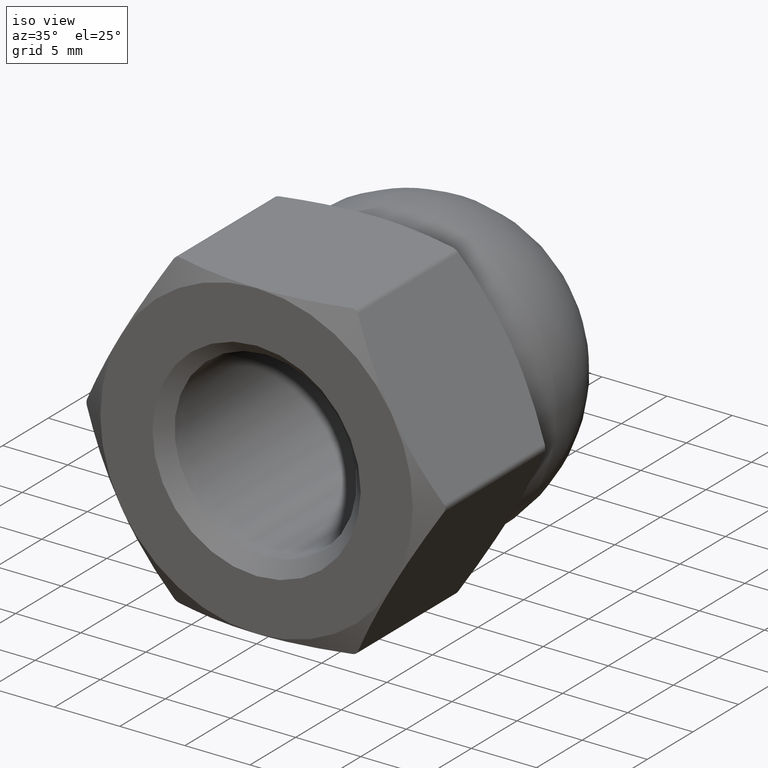
[diagram: clean part render]
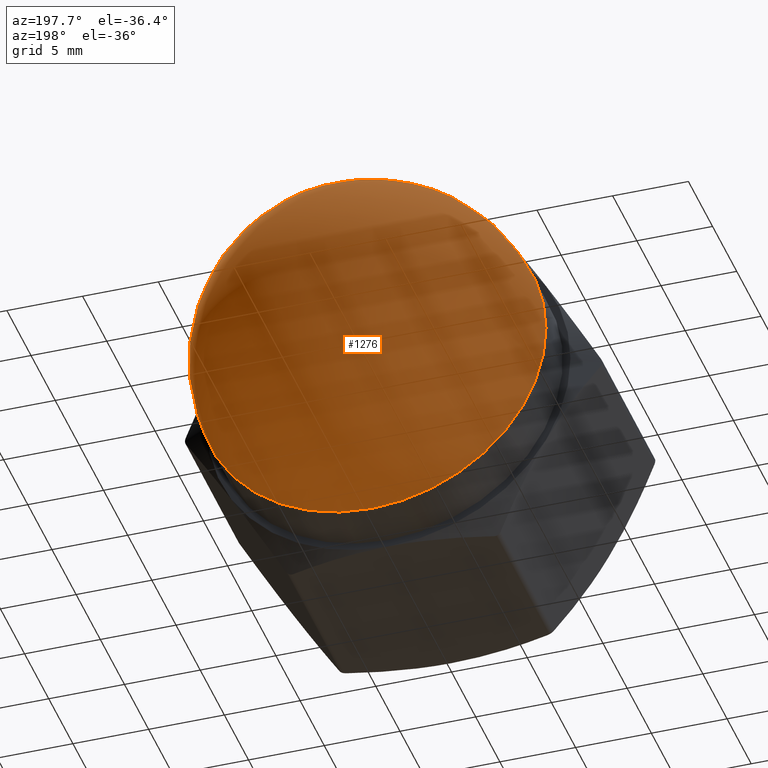
[diagram: tour spotlight — one face highlighted and labeled with its STEP entity id]
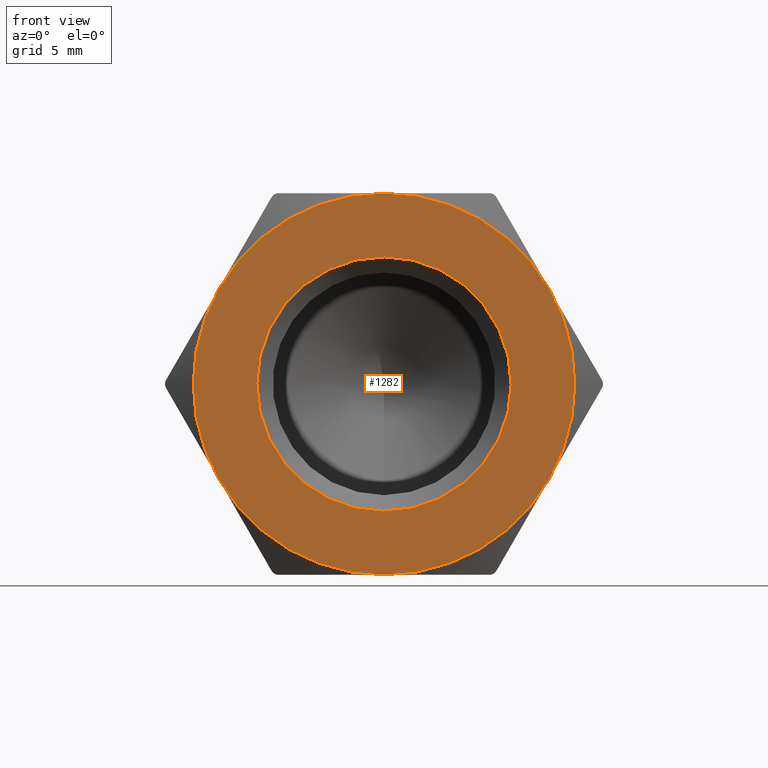
[diagram: tour spotlight — one face highlighted and labeled with its STEP entity id]
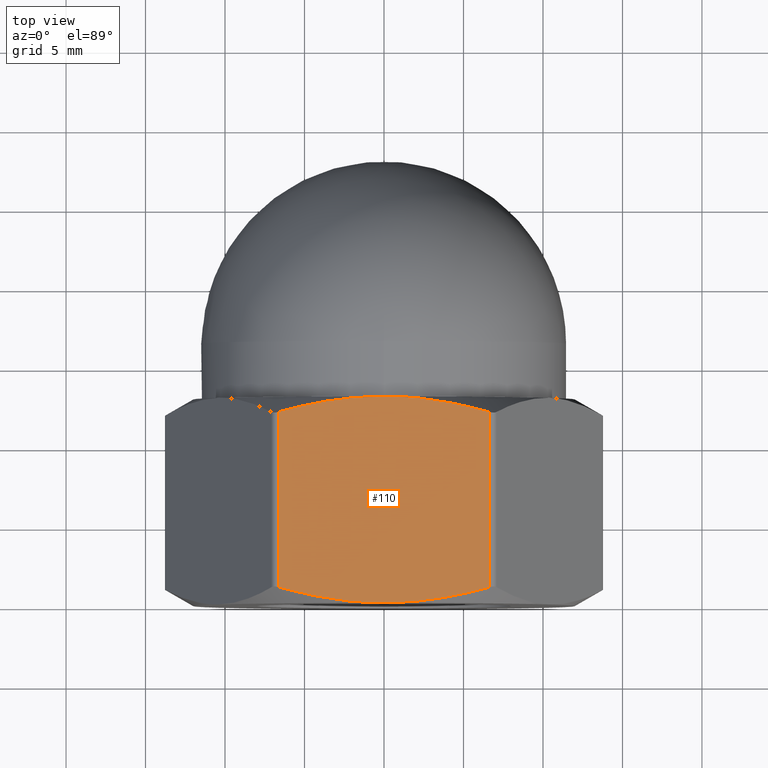
[diagram: tour spotlight — one face highlighted and labeled with its STEP entity id]
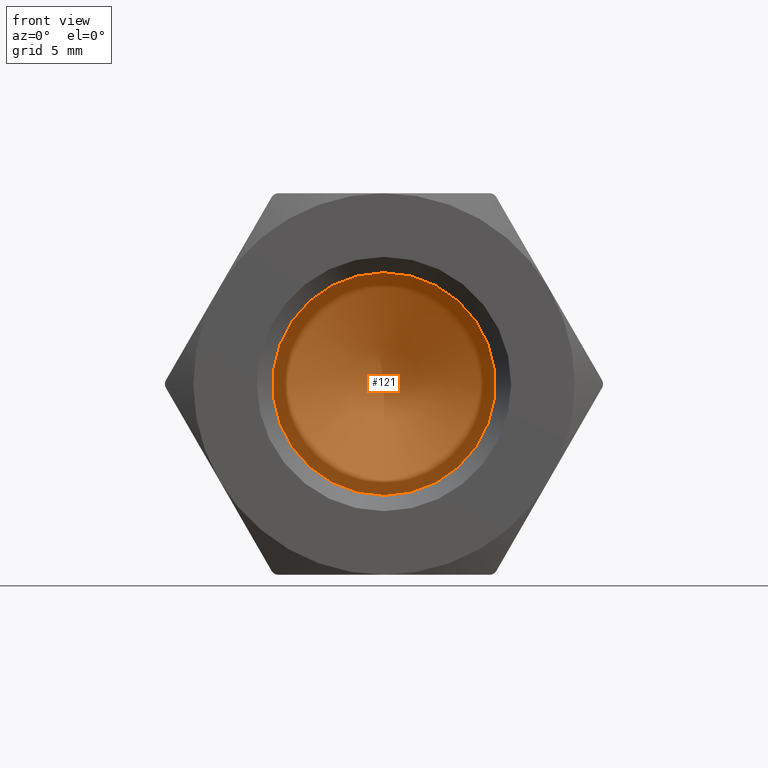
[diagram: tour spotlight — one face highlighted and labeled with its STEP entity id]
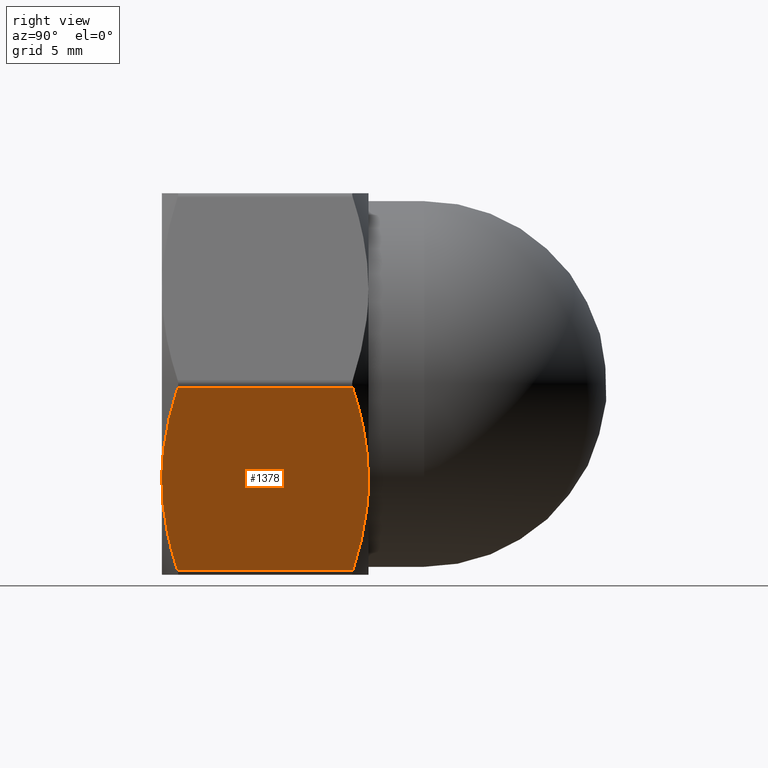
[diagram: tour spotlight — one face highlighted and labeled with its STEP entity id]
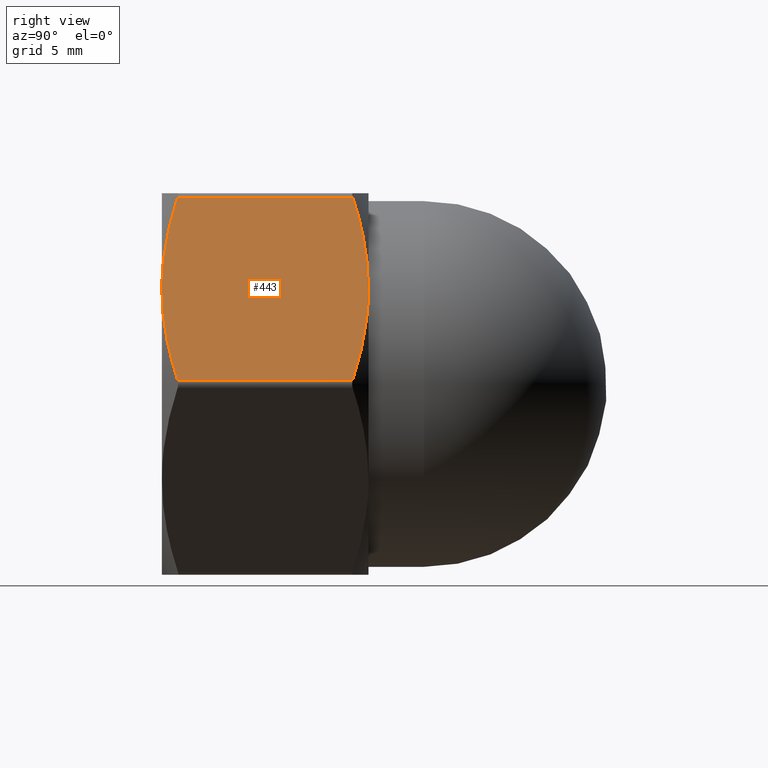
[diagram: tour spotlight — one face highlighted and labeled with its STEP entity id]
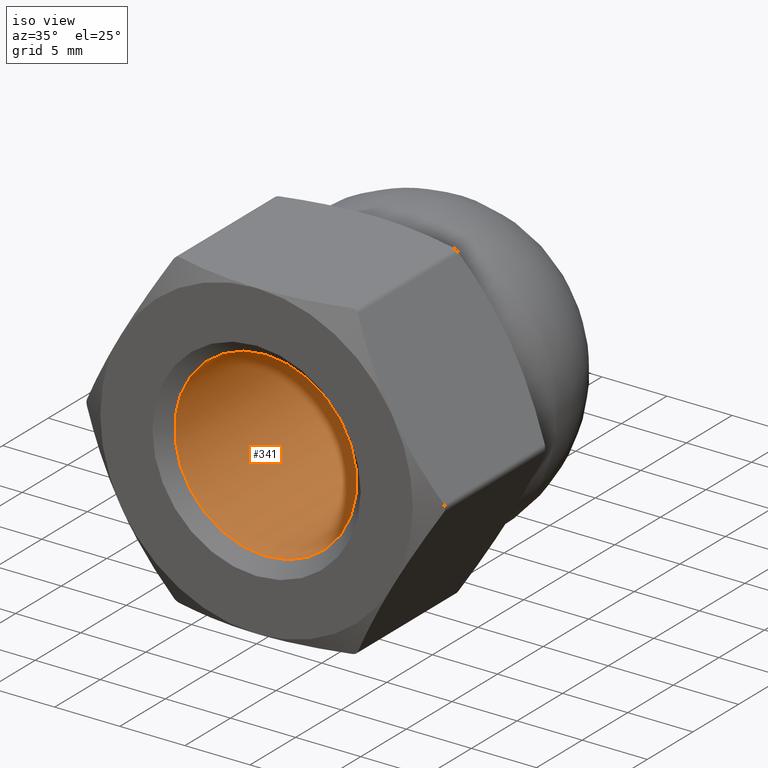
[diagram: tour spotlight — one face highlighted and labeled with its STEP entity id]
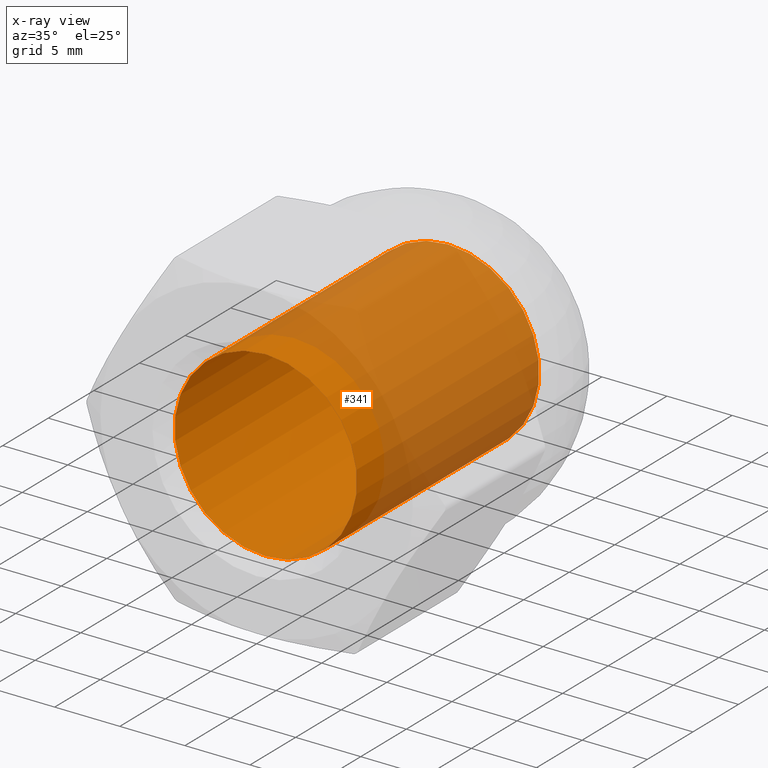
[diagram: x-ray of the same camera — body ghosted, this tour face saturated]
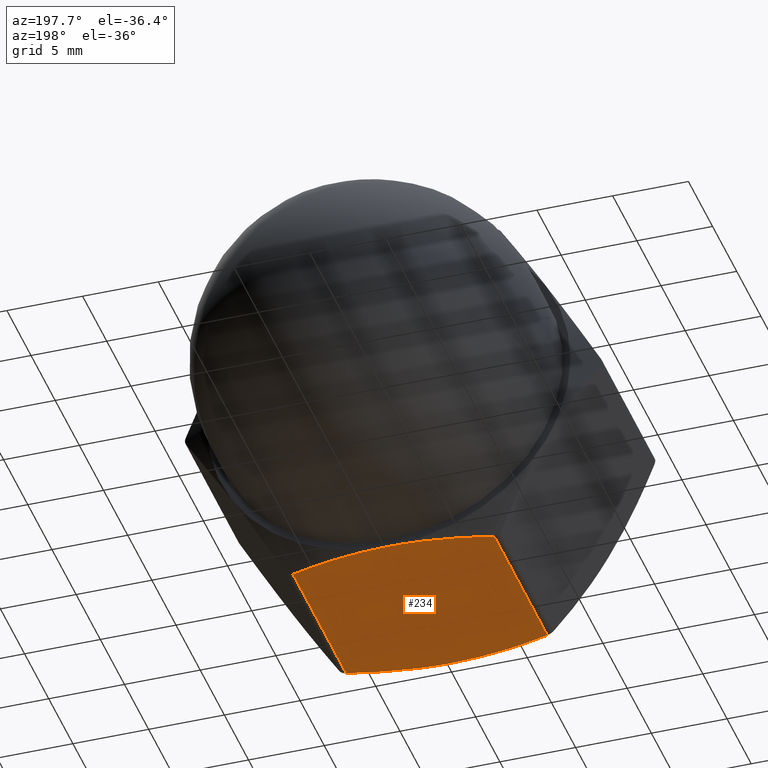
[diagram: tour spotlight — one face highlighted and labeled with its STEP entity id]
A machine part: a face-by-face anatomy tour. The part has 31 B-rep faces; the first image is the clean iso view, then the 8 largest visible faces are spotlighted one at a time (largest first), each with its STEP entity span.

Face 1 — auxiliary view, entity #1276. In plain terms, the highlighted spherical surface has radius 11.5 mm.
Definition (entity closure, byte-faithful):
#148 = CARTESIAN_POINT ( 'NONE',  ( 1.010333609296566500E-015, 16.50000000000000000, 0.0000000000000000000 ) ) ;
#223 = AXIS2_PLACEMENT_3D ( 'NONE', #148, #884, #654 ) ;
#296 = ORIENTED_EDGE ( 'NONE', *, *, #1033, .T. ) ;
#306 = DIRECTION ( 'NONE',  ( -9.850419906185231500E-017, 1.000000000000000000, -0.0000000000000000000 ) ) ;
#313 = DIRECTION ( 'NONE',  ( -1.000000000000000000, 0.0000000000000000000, 0.0000000000000000000 ) ) ;
#475 = CIRCLE ( 'NONE', #544, 11.50000000000000000 ) ;
#544 = AXIS2_PLACEMENT_3D ( 'NONE', #929, #306, #313 ) ;
#654 = DIRECTION ( 'NONE',  ( 1.000000000000000000, 0.0000000000000000000, 0.0000000000000000000 ) ) ;
#742 = SPHERICAL_SURFACE ( 'NONE', #223, 11.50000000000000000 ) ;
#884 = DIRECTION ( 'NONE',  ( 0.0000000000000000000, 0.0000000000000000000, -1.000000000000000000 ) ) ;
#929 = CARTESIAN_POINT ( 'NONE',  ( 1.010333609296566500E-015, 16.50000000000000000, 0.0000000000000000000 ) ) ;
#1024 = FACE_OUTER_BOUND ( 'NONE', #1258, .T. ) ;
#1033 = EDGE_CURVE ( 'NONE', #1270, #1270, #475, .T. ) ;
#1258 = EDGE_LOOP ( 'NONE', ( #296 ) ) ;
#1270 = VERTEX_POINT ( 'NONE', #1341 ) ;
#1276 = ADVANCED_FACE ( 'NONE', ( #1024 ), #742, .T. ) ;
#1341 = CARTESIAN_POINT ( 'NONE',  ( -11.49999999999999800, 16.50000000000000000, 0.0000000000000000000 ) ) ;

Face 2 — front view, entity #1282. In plain terms, the highlighted planar face has unit normal (0, 1, 0).
Definition (entity closure, byte-faithful):
#8 = CIRCLE ( 'NONE', #1261, 12.00000000000000200 ) ;
#11 = VERTEX_POINT ( 'NONE', #935 ) ;
#16 = EDGE_LOOP ( 'NONE', ( #221 ) ) ;
#42 = VERTEX_POINT ( 'NONE', #524 ) ;
#77 = CIRCLE ( 'NONE', #1328, 12.00000000000000200 ) ;
#78 = CIRCLE ( 'NONE', #233, 12.00000000000000200 ) ;
#99 = ORIENTED_EDGE ( 'NONE', *, *, #705, .T. ) ;
#103 = AXIS2_PLACEMENT_3D ( 'NONE', #170, #1001, #903 ) ;
#116 = CIRCLE ( 'NONE', #1048, 12.00000000000000200 ) ;
#170 = CARTESIAN_POINT ( 'NONE',  ( 0.0000000000000000000, 0.0000000000000000000, 0.0000000000000000000 ) ) ;
#221 = ORIENTED_EDGE ( 'NONE', *, *, #1086, .T. ) ;
#233 = AXIS2_PLACEMENT_3D ( 'NONE', #584, #1329, #1203 ) ;
#239 = ORIENTED_EDGE ( 'NONE', *, *, #1299, .F. ) ;
#269 = CARTESIAN_POINT ( 'NONE',  ( 0.0000000000000000000, 0.0000000000000000000, 0.0000000000000000000 ) ) ;
#270 = EDGE_CURVE ( 'NONE', #769, #358, #8, .T. ) ;
#280 = CARTESIAN_POINT ( 'NONE',  ( -10.39230484541326400, 0.0000000000000000000, -6.000000000000001800 ) ) ;
#298 = AXIS2_PLACEMENT_3D ( 'NONE', #488, #788, #1207 ) ;
#336 = DIRECTION ( 'NONE',  ( 0.0000000000000000000, 0.0000000000000000000, 1.000000000000000000 ) ) ;
#358 = VERTEX_POINT ( 'NONE', #280 ) ;
#379 = VERTEX_POINT ( 'NONE', #411 ) ;
#380 = CARTESIAN_POINT ( 'NONE',  ( 10.39230484541326400, 0.0000000000000000000, -6.000000000000004400 ) ) ;
#381 = ORIENTED_EDGE ( 'NONE', *, *, #619, .F. ) ;
#383 = DIRECTION ( 'NONE',  ( 0.0000000000000000000, 1.000000000000000000, 0.0000000000000000000 ) ) ;
#401 = AXIS2_PLACEMENT_3D ( 'NONE', #1186, #1174, #336 ) ;
#410 = VERTEX_POINT ( 'NONE', #1327 ) ;
#411 = CARTESIAN_POINT ( 'NONE',  ( 0.0000000000000000000, 0.0000000000000000000, 12.00000000000000000 ) ) ;
#481 = PLANE ( 'NONE',  #298 ) ;
#488 = CARTESIAN_POINT ( 'NONE',  ( 0.0000000000000000000, 0.0000000000000000000, 0.0000000000000000000 ) ) ;
#498 = ORIENTED_EDGE ( 'NONE', *, *, #898, .F. ) ;
#524 = CARTESIAN_POINT ( 'NONE',  ( 0.0000000000000000000, 0.0000000000000000000, 8.000000000000007100 ) ) ;
#541 = FACE_OUTER_BOUND ( 'NONE', #1324, .T. ) ;
#543 = ORIENTED_EDGE ( 'NONE', *, *, #270, .F. ) ;
#584 = CARTESIAN_POINT ( 'NONE',  ( 0.0000000000000000000, 0.0000000000000000000, 0.0000000000000000000 ) ) ;
#600 = DIRECTION ( 'NONE',  ( 0.0000000000000000000, 1.000000000000000000, 0.0000000000000000000 ) ) ;
#619 = EDGE_CURVE ( 'NONE', #358, #410, #892, .T. ) ;
#630 = VERTEX_POINT ( 'NONE', #380 ) ;
#637 = DIRECTION ( 'NONE',  ( 0.0000000000000000000, 0.0000000000000000000, 1.000000000000000000 ) ) ;
#705 = EDGE_CURVE ( 'NONE', #769, #630, #78, .T. ) ;
#713 = CARTESIAN_POINT ( 'NONE',  ( 0.0000000000000000000, 0.0000000000000000000, 0.0000000000000000000 ) ) ;
#717 = DIRECTION ( 'NONE',  ( 0.0000000000000000000, 1.000000000000000000, 0.0000000000000000000 ) ) ;
#760 = FACE_BOUND ( 'NONE', #16, .T. ) ;
#769 = VERTEX_POINT ( 'NONE', #890 ) ;
#788 = DIRECTION ( 'NONE',  ( 0.0000000000000000000, 1.000000000000000000, 0.0000000000000000000 ) ) ;
#890 = CARTESIAN_POINT ( 'NONE',  ( -1.502314598737160000E-015, 0.0000000000000000000, -12.00000000000000200 ) ) ;
#892 = CIRCLE ( 'NONE', #103, 12.00000000000000200 ) ;
#897 = DIRECTION ( 'NONE',  ( 0.0000000000000000000, 0.0000000000000000000, 1.000000000000000000 ) ) ;
#898 = EDGE_CURVE ( 'NONE', #410, #379, #116, .T. ) ;
#903 = DIRECTION ( 'NONE',  ( 0.0000000000000000000, 0.0000000000000000000, 1.000000000000000000 ) ) ;
#915 = CARTESIAN_POINT ( 'NONE',  ( 0.0000000000000000000, 0.0000000000000000000, 0.0000000000000000000 ) ) ;
#917 = CARTESIAN_POINT ( 'NONE',  ( 0.0000000000000000000, 0.0000000000000000000, 0.0000000000000000000 ) ) ;
#935 = CARTESIAN_POINT ( 'NONE',  ( 10.39230484541326800, 0.0000000000000000000, 5.999999999999999100 ) ) ;
#1001 = DIRECTION ( 'NONE',  ( 0.0000000000000000000, 1.000000000000000000, 0.0000000000000000000 ) ) ;
#1048 = AXIS2_PLACEMENT_3D ( 'NONE', #917, #717, #637 ) ;
#1056 = CIRCLE ( 'NONE', #1230, 12.00000000000000200 ) ;
#1086 = EDGE_CURVE ( 'NONE', #42, #42, #1202, .T. ) ;
#1128 = DIRECTION ( 'NONE',  ( 0.0000000000000000000, 0.0000000000000000000, 1.000000000000000000 ) ) ;
#1174 = DIRECTION ( 'NONE',  ( 0.0000000000000000000, 1.000000000000000000, 0.0000000000000000000 ) ) ;
#1186 = CARTESIAN_POINT ( 'NONE',  ( 0.0000000000000000000, 0.0000000000000000000, 0.0000000000000000000 ) ) ;
#1202 = CIRCLE ( 'NONE', #401, 8.000000000000007100 ) ;
#1203 = DIRECTION ( 'NONE',  ( 0.0000000000000000000, 0.0000000000000000000, -1.000000000000000000 ) ) ;
#1207 = DIRECTION ( 'NONE',  ( 0.0000000000000000000, -0.0000000000000000000, 1.000000000000000000 ) ) ;
#1230 = AXIS2_PLACEMENT_3D ( 'NONE', #269, #383, #897 ) ;
#1239 = DIRECTION ( 'NONE',  ( 0.0000000000000000000, 1.000000000000000000, 0.0000000000000000000 ) ) ;
#1261 = AXIS2_PLACEMENT_3D ( 'NONE', #713, #600, #1330 ) ;
#1282 = ADVANCED_FACE ( 'NONE', ( #760, #541 ), #481, .F. ) ;
#1299 = EDGE_CURVE ( 'NONE', #379, #11, #1056, .T. ) ;
#1307 = ORIENTED_EDGE ( 'NONE', *, *, #1343, .F. ) ;
#1324 = EDGE_LOOP ( 'NONE', ( #239, #498, #381, #543, #99, #1307 ) ) ;
#1327 = CARTESIAN_POINT ( 'NONE',  ( -10.39230484541326600, 0.0000000000000000000, 6.000000000000002700 ) ) ;
#1328 = AXIS2_PLACEMENT_3D ( 'NONE', #915, #1239, #1128 ) ;
#1329 = DIRECTION ( 'NONE',  ( 0.0000000000000000000, -1.000000000000000000, 0.0000000000000000000 ) ) ;
#1330 = DIRECTION ( 'NONE',  ( 0.0000000000000000000, 0.0000000000000000000, 1.000000000000000000 ) ) ;
#1343 = EDGE_CURVE ( 'NONE', #11, #630, #77, .T. ) ;

Face 3 — top view, entity #110. In plain terms, the highlighted planar face has unit normal (0, 0, -1).
Definition (entity closure, byte-faithful):
#26 = CARTESIAN_POINT ( 'NONE',  ( 5.564852187614547100, 0.6893936322554054000, 12.00000000000000000 ) ) ;
#35 = CARTESIAN_POINT ( 'NONE',  ( -6.928203230275506100, 13.00000000000000000, 12.00000000000000000 ) ) ;
#58 = CARTESIAN_POINT ( 'NONE',  ( 2.250940326994608200, 12.88654657712218700, 12.00000000000000200 ) ) ;
#64 = CARTESIAN_POINT ( 'NONE',  ( 6.639528095680693900, 12.01022088346238800, 12.00000000000000000 ) ) ;
#69 = CARTESIAN_POINT ( 'NONE',  ( 4.476170215682654600, 12.55945454350330700, 11.99999999999999800 ) ) ;
#79 = CARTESIAN_POINT ( 'NONE',  ( -1.120843460520681200, 13.00000000000000000, 12.00000000000000200 ) ) ;
#81 = VERTEX_POINT ( 'NONE', #730 ) ;
#97 = VERTEX_POINT ( 'NONE', #669 ) ;
#100 = B_SPLINE_CURVE_WITH_KNOTS ( 'NONE', 3,
 ( #552, #109, #1064, #1275, #453, #229 ),
 .UNSPECIFIED., .F., .F.,
 ( 4, 2, 4 ),
 ( 0.01207366422126375300, 0.01542013120109691000, 0.01876659818093006500 ),
 .UNSPECIFIED. ) ;
#109 = CARTESIAN_POINT ( 'NONE',  ( -1.120843460520680700, -1.067261513540418000E-015, 11.99999999999999800 ) ) ;
#110 = ADVANCED_FACE ( 'NONE', ( #442 ), #665, .F. ) ;
#140 = ORIENTED_EDGE ( 'NONE', *, *, #491, .F. ) ;
#146 = DIRECTION ( 'NONE',  ( 0.0000000000000000000, 0.0000000000000000000, -1.000000000000000000 ) ) ;
#190 = CARTESIAN_POINT ( 'NONE',  ( -4.450555589881894000, 12.56459061380292600, 12.00000000000000200 ) ) ;
#229 = CARTESIAN_POINT ( 'NONE',  ( -6.639528095680755200, 0.9897791165375797700, 12.00000000000000000 ) ) ;
#250 = CARTESIAN_POINT ( 'NONE',  ( 2.812232842606248200, 0.1810271902809791900, 12.00000000000000000 ) ) ;
#291 = CARTESIAN_POINT ( 'NONE',  ( 0.0000000000000000000, 13.00000000000000000, 12.00000000000000000 ) ) ;
#300 = CARTESIAN_POINT ( 'NONE',  ( 1.122912357192196800, 12.97720845569013000, 12.00000000000000200 ) ) ;
#317 = LINE ( 'NONE', #1116, #1135 ) ;
#318 = CARTESIAN_POINT ( 'NONE',  ( -6.639528095680758700, 12.01022088346242000, 12.00000000000000000 ) ) ;
#319 = EDGE_LOOP ( 'NONE', ( #1353, #849, #1015, #140, #616, #963 ) ) ;
#367 = CARTESIAN_POINT ( 'NONE',  ( 4.476170215682656400, 0.4405454564966958000, 12.00000000000000000 ) ) ;
#379 = VERTEX_POINT ( 'NONE', #411 ) ;
#411 = CARTESIAN_POINT ( 'NONE',  ( 0.0000000000000000000, 0.0000000000000000000, 12.00000000000000000 ) ) ;
#414 = B_SPLINE_CURVE_WITH_KNOTS ( 'NONE', 3,
 ( #611, #1227, #190, #701, #79, #291 ),
 .UNSPECIFIED., .F., .F.,
 ( 4, 2, 4 ),
 ( 0.01265961203048488300, 0.01601465630321334500, 0.01936970057594181200 ),
 .UNSPECIFIED. ) ;
#442 = FACE_OUTER_BOUND ( 'NONE', #319, .T. ) ;
#453 = CARTESIAN_POINT ( 'NONE',  ( -5.557285300470621100, 0.6872785917653089200, 12.00000000000000200 ) ) ;
#491 = EDGE_CURVE ( 'NONE', #81, #379, #1050, .T. ) ;
#515 = CARTESIAN_POINT ( 'NONE',  ( 2.812232842606247700, 12.81897280971902100, 12.00000000000000000 ) ) ;
#533 = DIRECTION ( 'NONE',  ( 0.0000000000000000000, -1.000000000000000000, 0.0000000000000000000 ) ) ;
#552 = CARTESIAN_POINT ( 'NONE',  ( 0.0000000000000000000, 0.0000000000000000000, 12.00000000000000000 ) ) ;
#572 = CARTESIAN_POINT ( 'NONE',  ( 0.5605972413833053600, -1.143494478793305500E-015, 12.00000000000000200 ) ) ;
#595 = CARTESIAN_POINT ( 'NONE',  ( 0.0000000000000000000, 13.00000000000000000, 12.00000000000000000 ) ) ;
#598 = EDGE_CURVE ( 'NONE', #81, #97, #317, .T. ) ;
#611 = CARTESIAN_POINT ( 'NONE',  ( -6.639528095680758700, 12.01022088346242000, 12.00000000000000000 ) ) ;
#616 = ORIENTED_EDGE ( 'NONE', *, *, #598, .T. ) ;
#643 = B_SPLINE_CURVE_WITH_KNOTS ( 'NONE', 3,
 ( #1338, #1125, #300, #58, #515, #69, #711, #64 ),
 .UNSPECIFIED., .F., .F.,
 ( 4, 2, 2, 4 ),
 ( 0.01936970057594181200, 0.02104774807343687600, 0.02272579557093194100, 0.02608189056592207000 ),
 .UNSPECIFIED. ) ;
#656 = CARTESIAN_POINT ( 'NONE',  ( 1.122912357192196800, 0.02279154430987211100, 12.00000000000000200 ) ) ;
#665 = PLANE ( 'NONE',  #1103 ) ;
#669 = CARTESIAN_POINT ( 'NONE',  ( 6.639528095680693900, 12.01022088346238800, 12.00000000000000000 ) ) ;
#683 = DIRECTION ( 'NONE',  ( -1.000000000000000000, 0.0000000000000000000, -0.0000000000000000000 ) ) ;
#698 = DIRECTION ( 'NONE',  ( -0.0000000000000000000, 1.000000000000000000, -0.0000000000000000000 ) ) ;
#701 = CARTESIAN_POINT ( 'NONE',  ( -2.234743191283541400, 12.90787549887573800, 12.00000000000000200 ) ) ;
#711 = CARTESIAN_POINT ( 'NONE',  ( 5.564852187614546300, 12.31060636774459400, 12.00000000000000200 ) ) ;
#724 = VERTEX_POINT ( 'NONE', #804 ) ;
#730 = CARTESIAN_POINT ( 'NONE',  ( 6.639528095680694800, 0.9897791165376106400, 12.00000000000000000 ) ) ;
#747 = VERTEX_POINT ( 'NONE', #595 ) ;
#765 = CARTESIAN_POINT ( 'NONE',  ( 2.250940326994609100, 0.1134534228778152400, 12.00000000000000200 ) ) ;
#770 = CARTESIAN_POINT ( 'NONE',  ( 6.639528095680694800, 0.9897791165376106400, 12.00000000000000000 ) ) ;
#804 = CARTESIAN_POINT ( 'NONE',  ( -6.639528095680755200, 0.9897791165375797700, 12.00000000000000000 ) ) ;
#830 = EDGE_CURVE ( 'NONE', #747, #97, #643, .T. ) ;
#849 = ORIENTED_EDGE ( 'NONE', *, *, #1061, .T. ) ;
#867 = EDGE_CURVE ( 'NONE', #938, #747, #414, .T. ) ;
#888 = VECTOR ( 'NONE', #533, 1000.000000000000000 ) ;
#938 = VERTEX_POINT ( 'NONE', #318 ) ;
#963 = ORIENTED_EDGE ( 'NONE', *, *, #830, .F. ) ;
#978 = CARTESIAN_POINT ( 'NONE',  ( 0.0000000000000000000, 0.0000000000000000000, 12.00000000000000000 ) ) ;
#1015 = ORIENTED_EDGE ( 'NONE', *, *, #1112, .F. ) ;
#1050 = B_SPLINE_CURVE_WITH_KNOTS ( 'NONE', 3,
 ( #770, #26, #367, #250, #765, #656, #572, #978 ),
 .UNSPECIFIED., .F., .F.,
 ( 4, 2, 2, 4 ),
 ( 0.005378634189493579000, 0.008726149205378666200, 0.01039990671332121000, 0.01207366422126375300 ),
 .UNSPECIFIED. ) ;
#1061 = EDGE_CURVE ( 'NONE', #938, #724, #1090, .T. ) ;
#1064 = CARTESIAN_POINT ( 'NONE',  ( -2.234743191283539600, 0.09212450112426455500, 12.00000000000000200 ) ) ;
#1090 = LINE ( 'NONE', #1149, #888 ) ;
#1103 = AXIS2_PLACEMENT_3D ( 'NONE', #35, #146, #683 ) ;
#1112 = EDGE_CURVE ( 'NONE', #379, #724, #100, .T. ) ;
#1116 = CARTESIAN_POINT ( 'NONE',  ( 6.639528095680694800, 13.00000000000000000, 12.00000000000000000 ) ) ;
#1125 = CARTESIAN_POINT ( 'NONE',  ( 0.5605972413833051300, 13.00000000000000200, 11.99999999999999800 ) ) ;
#1135 = VECTOR ( 'NONE', #698, 1000.000000000000000 ) ;
#1149 = CARTESIAN_POINT ( 'NONE',  ( -6.639528095680693900, 13.00000000000000000, 12.00000000000000000 ) ) ;
#1227 = CARTESIAN_POINT ( 'NONE',  ( -5.557285300470622900, 12.31272140823469000, 11.99999999999999800 ) ) ;
#1275 = CARTESIAN_POINT ( 'NONE',  ( -4.450555589881888700, 0.4354093861970753100, 12.00000000000000200 ) ) ;
#1338 = CARTESIAN_POINT ( 'NONE',  ( 0.0000000000000000000, 13.00000000000000000, 12.00000000000000000 ) ) ;
#1353 = ORIENTED_EDGE ( 'NONE', *, *, #867, .F. ) ;

Face 4 — front view, entity #121. In plain terms, the highlighted conical surface has half-angle 59 deg.
Definition (entity closure, byte-faithful):
#121 = ADVANCED_FACE ( 'NONE', ( #1204 ), #959, .F. ) ;
#175 = CARTESIAN_POINT ( 'NONE',  ( 0.0000000000000000000, 21.00000000000000000, 0.0000000000000000000 ) ) ;
#275 = DIRECTION ( 'NONE',  ( 0.0000000000000000000, 0.0000000000000000000, -1.000000000000000000 ) ) ;
#302 = CIRCLE ( 'NONE', #649, 6.999999999999995600 ) ;
#649 = AXIS2_PLACEMENT_3D ( 'NONE', #175, #820, #909 ) ;
#712 = ORIENTED_EDGE ( 'NONE', *, *, #850, .T. ) ;
#721 = AXIS2_PLACEMENT_3D ( 'NONE', #1105, #988, #275 ) ;
#820 = DIRECTION ( 'NONE',  ( -0.0000000000000000000, -1.000000000000000000, -0.0000000000000000000 ) ) ;
#829 = CARTESIAN_POINT ( 'NONE',  ( 0.0000000000000000000, 21.00000000000000000, -6.999999999999995600 ) ) ;
#850 = EDGE_CURVE ( 'NONE', #993, #993, #302, .T. ) ;
#909 = DIRECTION ( 'NONE',  ( 0.0000000000000000000, 0.0000000000000000000, -1.000000000000000000 ) ) ;
#959 = CONICAL_SURFACE ( 'NONE', #721, 6.999999999999995600, 1.029744258676653400 ) ;
#988 = DIRECTION ( 'NONE',  ( -0.0000000000000000000, -1.000000000000000000, -0.0000000000000000000 ) ) ;
#993 = VERTEX_POINT ( 'NONE', #829 ) ;
#1105 = CARTESIAN_POINT ( 'NONE',  ( 0.0000000000000000000, 21.00000000000000000, 0.0000000000000000000 ) ) ;
#1123 = EDGE_LOOP ( 'NONE', ( #712 ) ) ;
#1204 = FACE_OUTER_BOUND ( 'NONE', #1123, .T. ) ;

Face 5 — right view, entity #1378. In plain terms, the highlighted planar face has unit normal (-0.866, 0, 0.5).
Definition (entity closure, byte-faithful):
#30 = ORIENTED_EDGE ( 'NONE', *, *, #657, .T. ) ;
#38 = CARTESIAN_POINT ( 'NONE',  ( 10.39230484541326400, 13.00000000000000000, -6.000000000000004400 ) ) ;
#43 = VECTOR ( 'NONE', #899, 1000.000000000000000 ) ;
#48 = CARTESIAN_POINT ( 'NONE',  ( 10.95744704231412900, 13.00000000000000900, -5.021145001466601700 ) ) ;
#56 = CARTESIAN_POINT ( 'NONE',  ( 8.990347189129828100, 12.82002802009278000, -8.428261890743083700 ) ) ;
#60 = CARTESIAN_POINT ( 'NONE',  ( 13.71206889325361000, 13.00000000000000000, -0.2500000000000005000 ) ) ;
#83 = CARTESIAN_POINT ( 'NONE',  ( 7.615867869546742800, 0.6860455640991240900, -10.80892990621369200 ) ) ;
#88 = CARTESIAN_POINT ( 'NONE',  ( 10.39230484541326400, 0.0000000000000000000, -6.000000000000004400 ) ) ;
#92 = CARTESIAN_POINT ( 'NONE',  ( 10.95658457648177900, 0.02321187332249741200, -5.022638836108027000 ) ) ;
#115 = EDGE_CURVE ( 'NONE', #750, #911, #370, .T. ) ;
#130 = CARTESIAN_POINT ( 'NONE',  ( 7.072540797572896700, 0.9897791165376161900, -11.75000000000002100 ) ) ;
#162 = CARTESIAN_POINT ( 'NONE',  ( 10.11082040635886900, 13.00000000000001100, -6.487545349982230600 ) ) ;
#163 = CARTESIAN_POINT ( 'NONE',  ( 7.072540797572910000, 12.01022088346239000, -11.74999999999999800 ) ) ;
#171 = EDGE_LOOP ( 'NONE', ( #1254, #30, #363, #1096, #913, #1039 ) ) ;
#180 = CARTESIAN_POINT ( 'NONE',  ( 8.161051184807723400, 12.56206301313893200, -9.864644704742834900 ) ) ;
#189 = EDGE_CURVE ( 'NONE', #911, #617, #774, .T. ) ;
#194 = CARTESIAN_POINT ( 'NONE',  ( 7.072540797572896700, 0.9897791165376161900, -11.75000000000002100 ) ) ;
#214 = CARTESIAN_POINT ( 'NONE',  ( 13.17005630627445700, 0.6867803944023982400, -1.188793338989742300 ) ) ;
#262 = CARTESIAN_POINT ( 'NONE',  ( 11.51586903937508000, 12.90643417457839200, -4.053929730492941800 ) ) ;
#272 = B_SPLINE_CURVE_WITH_KNOTS ( 'NONE', 3,
 ( #194, #83, #1140, #927, #299, #513 ),
 .UNSPECIFIED., .F., .F.,
 ( 4, 2, 4 ),
 ( 0.0002976420579480877700, 0.003654043546377617200, 0.007010445034807147300 ),
 .UNSPECIFIED. ) ;
#289 = EDGE_CURVE ( 'NONE', #750, #1065, #461, .T. ) ;
#297 = CARTESIAN_POINT ( 'NONE',  ( 7.072540797572910000, 12.01022088346239000, -11.74999999999999800 ) ) ;
#299 = CARTESIAN_POINT ( 'NONE',  ( 9.827162648512390000, -1.008646833590420800E-014, -6.978854998533403600 ) ) ;
#301 = FACE_OUTER_BOUND ( 'NONE', #171, .T. ) ;
#303 = DIRECTION ( 'NONE',  ( 0.5000000000000002200, 0.0000000000000000000, 0.8660254037844384900 ) ) ;
#325 = CARTESIAN_POINT ( 'NONE',  ( 10.67378928446761500, -1.040579975701907700E-014, -5.512454650017829700 ) ) ;
#339 = LINE ( 'NONE', #489, #43 ) ;
#363 = ORIENTED_EDGE ( 'NONE', *, *, #189, .F. ) ;
#369 = CARTESIAN_POINT ( 'NONE',  ( 13.71206889325362300, 12.01022088346238100, -0.2499999999999792900 ) ) ;
#370 = B_SPLINE_CURVE_WITH_KNOTS ( 'NONE', 3,
 ( #369, #1314, #882, #262, #48, #487 ),
 .UNSPECIFIED., .F., .F.,
 ( 4, 2, 4 ),
 ( 0.0002976420579480840800, 0.003654043546377615100, 0.007010445034807147300 ),
 .UNSPECIFIED. ) ;
#380 = CARTESIAN_POINT ( 'NONE',  ( 10.39230484541326400, 0.0000000000000000000, -6.000000000000004400 ) ) ;
#403 = B_SPLINE_CURVE_WITH_KNOTS ( 'NONE', 3,
 ( #88, #325, #92, #624, #1141, #1040, #214, #1162 ),
 .UNSPECIFIED., .F., .F.,
 ( 4, 2, 2, 4 ),
 ( 0.007010445034807147300, 0.008682192066603335700, 0.01035393909839952400, 0.01369743316199190100 ),
 .UNSPECIFIED. ) ;
#461 = LINE ( 'NONE', #60, #860 ) ;
#462 = CARTESIAN_POINT ( 'NONE',  ( 13.71206889325324400, 0.9897791165374056900, -0.2500000000006350500 ) ) ;
#487 = CARTESIAN_POINT ( 'NONE',  ( 10.39230484541326400, 13.00000000000000000, -6.000000000000004400 ) ) ;
#489 = CARTESIAN_POINT ( 'NONE',  ( 7.072540797572910900, 13.00000000000000000, -11.74999999999999800 ) ) ;
#513 = CARTESIAN_POINT ( 'NONE',  ( 10.39230484541326400, 0.0000000000000000000, -6.000000000000004400 ) ) ;
#516 = VERTEX_POINT ( 'NONE', #130 ) ;
#610 = DIRECTION ( 'NONE',  ( -0.8660254037844386000, 0.0000000000000000000, 0.5000000000000003300 ) ) ;
#617 = VERTEX_POINT ( 'NONE', #163 ) ;
#624 = CARTESIAN_POINT ( 'NONE',  ( 11.51623569666494300, 0.1132396048635532400, -4.053294661437945500 ) ) ;
#630 = VERTEX_POINT ( 'NONE', #380 ) ;
#657 = EDGE_CURVE ( 'NONE', #516, #617, #339, .T. ) ;
#692 = CARTESIAN_POINT ( 'NONE',  ( 13.71206889325362300, 12.01022088346238100, -0.2499999999999792900 ) ) ;
#695 = CARTESIAN_POINT ( 'NONE',  ( 7.614553384551759200, 12.31321960559746000, -10.81120666101079300 ) ) ;
#750 = VERTEX_POINT ( 'NONE', #692 ) ;
#774 = B_SPLINE_CURVE_WITH_KNOTS ( 'NONE', 3,
 ( #38, #162, #1005, #802, #56, #180, #695, #297 ),
 .UNSPECIFIED., .F., .F.,
 ( 4, 2, 2, 4 ),
 ( 0.007010445034807147300, 0.008682192066603523100, 0.01035393909839989700, 0.01369743316199265000 ),
 .UNSPECIFIED. ) ;
#802 = CARTESIAN_POINT ( 'NONE',  ( 9.268373994161443400, 12.88676039513641700, -7.946705338562272100 ) ) ;
#815 = CARTESIAN_POINT ( 'NONE',  ( 13.85640646055101600, 13.00000000000000000, -2.527601937510759600E-015 ) ) ;
#823 = CARTESIAN_POINT ( 'NONE',  ( 10.39230484541326400, 13.00000000000000000, -6.000000000000004400 ) ) ;
#860 = VECTOR ( 'NONE', #914, 1000.000000000000000 ) ;
#874 = AXIS2_PLACEMENT_3D ( 'NONE', #815, #610, #303 ) ;
#882 = CARTESIAN_POINT ( 'NONE',  ( 12.62147978884728200, 12.56290125102713200, -2.138955739012800000 ) ) ;
#899 = DIRECTION ( 'NONE',  ( -0.0000000000000000000, 1.000000000000000000, -0.0000000000000000000 ) ) ;
#911 = VERTEX_POINT ( 'NONE', #823 ) ;
#913 = ORIENTED_EDGE ( 'NONE', *, *, #289, .T. ) ;
#914 = DIRECTION ( 'NONE',  ( 0.0000000000000000000, -1.000000000000000000, 0.0000000000000000000 ) ) ;
#927 = CARTESIAN_POINT ( 'NONE',  ( 9.268740651451430800, 0.09356582542160188400, -7.946070269507060000 ) ) ;
#965 = EDGE_CURVE ( 'NONE', #630, #1065, #403, .T. ) ;
#1005 = CARTESIAN_POINT ( 'NONE',  ( 9.828025114344676200, 12.97678812667749800, -6.977361163892085800 ) ) ;
#1029 = PLANE ( 'NONE',  #874 ) ;
#1039 = ORIENTED_EDGE ( 'NONE', *, *, #965, .F. ) ;
#1040 = CARTESIAN_POINT ( 'NONE',  ( 12.62355850601854900, 0.4379369868609758200, -2.135355295257594900 ) ) ;
#1065 = VERTEX_POINT ( 'NONE', #462 ) ;
#1096 = ORIENTED_EDGE ( 'NONE', *, *, #115, .F. ) ;
#1140 = CARTESIAN_POINT ( 'NONE',  ( 8.163129901979239400, 0.4370987489728677700, -9.861044260987201300 ) ) ;
#1141 = CARTESIAN_POINT ( 'NONE',  ( 11.79426250169653100, 0.1799719799071809200, -3.571738109257188500 ) ) ;
#1162 = CARTESIAN_POINT ( 'NONE',  ( 13.71206889325324400, 0.9897791165374056900, -0.2500000000006350500 ) ) ;
#1254 = ORIENTED_EDGE ( 'NONE', *, *, #1366, .F. ) ;
#1314 = CARTESIAN_POINT ( 'NONE',  ( 13.16874182127977700, 12.31395443590087700, -1.191070093786311700 ) ) ;
#1366 = EDGE_CURVE ( 'NONE', #516, #630, #272, .T. ) ;
#1378 = ADVANCED_FACE ( 'NONE', ( #301 ), #1029, .F. ) ;

Face 6 — right view, entity #443. In plain terms, the highlighted planar face has unit normal (-0.866, 0, -0.5).
Definition (entity closure, byte-faithful):
#11 = VERTEX_POINT ( 'NONE', #935 ) ;
#18 = EDGE_CURVE ( 'NONE', #1013, #1126, #65, .T. ) ;
#45 = CARTESIAN_POINT ( 'NONE',  ( 7.614553384552055000, 0.6867803944024046800, 10.81120666101028100 ) ) ;
#65 = B_SPLINE_CURVE_WITH_KNOTS ( 'NONE', 3,
 ( #309, #415, #1143, #521, #1249, #203 ),
 .UNSPECIFIED., .F., .F.,
 ( 4, 2, 4 ),
 ( 0.0002976420579480877700, 0.003654043546377619400, 0.007010445034807151600 ),
 .UNSPECIFIED. ) ;
#70 = CARTESIAN_POINT ( 'NONE',  ( 10.95658457648184300, 12.97678812667749600, 5.022638836107913300 ) ) ;
#112 = B_SPLINE_CURVE_WITH_KNOTS ( 'NONE', 3,
 ( #511, #1237, #70, #1231, #505, #286, #905, #1127 ),
 .UNSPECIFIED., .F., .F.,
 ( 4, 2, 2, 4 ),
 ( 0.007010445034807151600, 0.008682192066603528300, 0.01035393909839990400, 0.01369743316199265400 ),
 .UNSPECIFIED. ) ;
#127 = DIRECTION ( 'NONE',  ( -0.4999999999999998900, 0.0000000000000000000, 0.8660254037844387100 ) ) ;
#141 = DIRECTION ( 'NONE',  ( -0.8660254037844387100, 0.0000000000000000000, -0.4999999999999998900 ) ) ;
#150 = CARTESIAN_POINT ( 'NONE',  ( 10.11082040635890200, -9.757819552369536800E-015, 6.487545349982173800 ) ) ;
#155 = CARTESIAN_POINT ( 'NONE',  ( 10.39230484541326800, 0.0000000000000000000, 5.999999999999999100 ) ) ;
#169 = ORIENTED_EDGE ( 'NONE', *, *, #570, .F. ) ;
#184 = CARTESIAN_POINT ( 'NONE',  ( 7.072540797573265300, 0.9897791165374141300, 11.74999999999939200 ) ) ;
#185 = VECTOR ( 'NONE', #209, 1000.000000000000000 ) ;
#191 = ORIENTED_EDGE ( 'NONE', *, *, #562, .T. ) ;
#203 = CARTESIAN_POINT ( 'NONE',  ( 10.39230484541326800, 13.00000000000000000, 5.999999999999999100 ) ) ;
#209 = DIRECTION ( 'NONE',  ( -0.0000000000000000000, 1.000000000000000000, -0.0000000000000000000 ) ) ;
#211 = EDGE_CURVE ( 'NONE', #1126, #678, #112, .T. ) ;
#216 = CARTESIAN_POINT ( 'NONE',  ( 13.16874182127977600, 0.6860455640991244300, 1.191070093786309700 ) ) ;
#255 = LINE ( 'NONE', #1359, #185 ) ;
#267 = CARTESIAN_POINT ( 'NONE',  ( 8.161051184807963200, 0.4379369868609805400, 9.864644704742424600 ) ) ;
#286 = CARTESIAN_POINT ( 'NONE',  ( 12.62355850601880500, 12.56206301313893400, 2.135355295257162800 ) ) ;
#309 = CARTESIAN_POINT ( 'NONE',  ( 7.072540797572902000, 12.01022088346238100, 11.75000000000002100 ) ) ;
#321 = B_SPLINE_CURVE_WITH_KNOTS ( 'NONE', 3,
 ( #155, #150, #997, #1108, #784, #267, #45, #599 ),
 .UNSPECIFIED., .F., .F.,
 ( 4, 2, 2, 4 ),
 ( 0.007010445034807147300, 0.008682192066603342700, 0.01035393909839954000, 0.01369743316199193200 ),
 .UNSPECIFIED. ) ;
#332 = CARTESIAN_POINT ( 'NONE',  ( 10.95744704231413300, -9.588412962918679800E-015, 5.021145001466598100 ) ) ;
#389 = DIRECTION ( 'NONE',  ( 0.0000000000000000000, -1.000000000000000000, 0.0000000000000000000 ) ) ;
#415 = CARTESIAN_POINT ( 'NONE',  ( 7.615867869546748100, 12.31395443590087200, 10.80892990621368500 ) ) ;
#418 = EDGE_CURVE ( 'NONE', #563, #11, #1160, .T. ) ;
#443 = ADVANCED_FACE ( 'NONE', ( #1188 ), #773, .F. ) ;
#505 = CARTESIAN_POINT ( 'NONE',  ( 11.79426250169669300, 12.82002802009278100, 3.571738109256913600 ) ) ;
#511 = CARTESIAN_POINT ( 'NONE',  ( 10.39230484541326800, 13.00000000000000000, 5.999999999999999100 ) ) ;
#521 = CARTESIAN_POINT ( 'NONE',  ( 9.268740651451434300, 12.90643417457839700, 7.946070269507056400 ) ) ;
#562 = EDGE_CURVE ( 'NONE', #1013, #946, #995, .T. ) ;
#563 = VERTEX_POINT ( 'NONE', #799 ) ;
#570 = EDGE_CURVE ( 'NONE', #11, #946, #321, .T. ) ;
#582 = CARTESIAN_POINT ( 'NONE',  ( 6.928203230275507900, 13.00000000000000000, 12.00000000000000000 ) ) ;
#599 = CARTESIAN_POINT ( 'NONE',  ( 7.072540797573265300, 0.9897791165374141300, 11.74999999999939200 ) ) ;
#633 = CARTESIAN_POINT ( 'NONE',  ( 7.072540797572902000, 12.01022088346238100, 11.75000000000002100 ) ) ;
#646 = CARTESIAN_POINT ( 'NONE',  ( 10.39230484541326800, 13.00000000000000000, 5.999999999999999100 ) ) ;
#678 = VERTEX_POINT ( 'NONE', #793 ) ;
#773 = PLANE ( 'NONE',  #1333 ) ;
#784 = CARTESIAN_POINT ( 'NONE',  ( 8.990347189129982700, 0.1799719799071833300, 8.428261890742822600 ) ) ;
#789 = CARTESIAN_POINT ( 'NONE',  ( 7.072540797572914400, 13.00000000000000000, 11.75000000000000000 ) ) ;
#793 = CARTESIAN_POINT ( 'NONE',  ( 13.71206889325360800, 12.01022088346239000, 0.2499999999999987000 ) ) ;
#799 = CARTESIAN_POINT ( 'NONE',  ( 13.71206889325362100, 0.9897791165376168500, 0.2499999999999770700 ) ) ;
#816 = ORIENTED_EDGE ( 'NONE', *, *, #211, .F. ) ;
#856 = CARTESIAN_POINT ( 'NONE',  ( 13.71206889325362100, 0.9897791165376168500, 0.2499999999999770700 ) ) ;
#905 = CARTESIAN_POINT ( 'NONE',  ( 13.17005630627476400, 12.31321960559746000, 1.188793338989206700 ) ) ;
#921 = VECTOR ( 'NONE', #389, 1000.000000000000000 ) ;
#935 = CARTESIAN_POINT ( 'NONE',  ( 10.39230484541326800, 0.0000000000000000000, 5.999999999999999100 ) ) ;
#946 = VERTEX_POINT ( 'NONE', #184 ) ;
#955 = CARTESIAN_POINT ( 'NONE',  ( 11.51586903937509000, 0.09356582542160249400, 4.053929730492938300 ) ) ;
#995 = LINE ( 'NONE', #789, #921 ) ;
#996 = ORIENTED_EDGE ( 'NONE', *, *, #1016, .T. ) ;
#997 = CARTESIAN_POINT ( 'NONE',  ( 9.828025114344743700, 0.02321187332249810200, 6.977361163891978400 ) ) ;
#1013 = VERTEX_POINT ( 'NONE', #633 ) ;
#1016 = EDGE_CURVE ( 'NONE', #563, #678, #255, .T. ) ;
#1028 = ORIENTED_EDGE ( 'NONE', *, *, #18, .F. ) ;
#1066 = CARTESIAN_POINT ( 'NONE',  ( 10.39230484541326800, 0.0000000000000000000, 5.999999999999999100 ) ) ;
#1108 = CARTESIAN_POINT ( 'NONE',  ( 9.268373994161571300, 0.1132396048635548600, 7.946705338562064300 ) ) ;
#1126 = VERTEX_POINT ( 'NONE', #646 ) ;
#1127 = CARTESIAN_POINT ( 'NONE',  ( 13.71206889325360800, 12.01022088346239000, 0.2499999999999987000 ) ) ;
#1143 = CARTESIAN_POINT ( 'NONE',  ( 8.163129901979244700, 12.56290125102713000, 9.861044260987203100 ) ) ;
#1160 = B_SPLINE_CURVE_WITH_KNOTS ( 'NONE', 3,
 ( #856, #216, #1269, #955, #332, #1066 ),
 .UNSPECIFIED., .F., .F.,
 ( 4, 2, 4 ),
 ( 0.0002976420579480876600, 0.003654043546377617200, 0.007010445034807147300 ),
 .UNSPECIFIED. ) ;
#1188 = FACE_OUTER_BOUND ( 'NONE', #1323, .T. ) ;
#1223 = ORIENTED_EDGE ( 'NONE', *, *, #418, .F. ) ;
#1231 = CARTESIAN_POINT ( 'NONE',  ( 11.51623569666507600, 12.88676039513641800, 4.053294661437723400 ) ) ;
#1237 = CARTESIAN_POINT ( 'NONE',  ( 10.67378928446765800, 13.00000000000001100, 5.512454650017767600 ) ) ;
#1249 = CARTESIAN_POINT ( 'NONE',  ( 9.827162648512393500, 13.00000000000001100, 6.978854998533398300 ) ) ;
#1269 = CARTESIAN_POINT ( 'NONE',  ( 12.62147978884728200, 0.4370987489728684300, 2.138955739012798200 ) ) ;
#1323 = EDGE_LOOP ( 'NONE', ( #1223, #996, #816, #1028, #191, #169 ) ) ;
#1333 = AXIS2_PLACEMENT_3D ( 'NONE', #582, #141, #127 ) ;
#1359 = CARTESIAN_POINT ( 'NONE',  ( 13.71206889325361000, 13.00000000000000000, 0.2499999999999967500 ) ) ;

Face 7 — iso view, entity #341. An x-ray twin of the same camera follows (body ghosted, this face saturated) — the face is partly hidden behind the body. In plain terms, the highlighted cylindrical surface (bore or boss wall) has radius 7 mm, axis along (-0, -1, -0).
Definition (entity closure, byte-faithful):
#62 = ORIENTED_EDGE ( 'NONE', *, *, #850, .F. ) ;
#175 = CARTESIAN_POINT ( 'NONE',  ( 0.0000000000000000000, 21.00000000000000000, 0.0000000000000000000 ) ) ;
#187 = FACE_OUTER_BOUND ( 'NONE', #1180, .T. ) ;
#302 = CIRCLE ( 'NONE', #649, 6.999999999999995600 ) ;
#341 = ADVANCED_FACE ( 'NONE', ( #677, #187 ), #797, .F. ) ;
#353 = AXIS2_PLACEMENT_3D ( 'NONE', #1133, #519, #1241 ) ;
#402 = DIRECTION ( 'NONE',  ( -0.0000000000000000000, -1.000000000000000000, -0.0000000000000000000 ) ) ;
#519 = DIRECTION ( 'NONE',  ( 0.0000000000000000000, -1.000000000000000000, 0.0000000000000000000 ) ) ;
#618 = CARTESIAN_POINT ( 'NONE',  ( 0.0000000000000000000, 1.000000000000006900, 6.999999999999997300 ) ) ;
#649 = AXIS2_PLACEMENT_3D ( 'NONE', #175, #820, #909 ) ;
#677 = FACE_OUTER_BOUND ( 'NONE', #1339, .T. ) ;
#797 = CYLINDRICAL_SURFACE ( 'NONE', #1080, 6.999999999999997300 ) ;
#820 = DIRECTION ( 'NONE',  ( -0.0000000000000000000, -1.000000000000000000, -0.0000000000000000000 ) ) ;
#829 = CARTESIAN_POINT ( 'NONE',  ( 0.0000000000000000000, 21.00000000000000000, -6.999999999999995600 ) ) ;
#850 = EDGE_CURVE ( 'NONE', #993, #993, #302, .T. ) ;
#891 = EDGE_CURVE ( 'NONE', #920, #920, #1121, .T. ) ;
#909 = DIRECTION ( 'NONE',  ( 0.0000000000000000000, 0.0000000000000000000, -1.000000000000000000 ) ) ;
#912 = CARTESIAN_POINT ( 'NONE',  ( 0.0000000000000000000, 0.0000000000000000000, 0.0000000000000000000 ) ) ;
#920 = VERTEX_POINT ( 'NONE', #618 ) ;
#993 = VERTEX_POINT ( 'NONE', #829 ) ;
#1080 = AXIS2_PLACEMENT_3D ( 'NONE', #912, #402, #1340 ) ;
#1121 = CIRCLE ( 'NONE', #353, 6.999999999999997300 ) ;
#1133 = CARTESIAN_POINT ( 'NONE',  ( 0.0000000000000000000, 1.000000000000006900, 0.0000000000000000000 ) ) ;
#1180 = EDGE_LOOP ( 'NONE', ( #62 ) ) ;
#1241 = DIRECTION ( 'NONE',  ( 0.0000000000000000000, 0.0000000000000000000, 1.000000000000000000 ) ) ;
#1243 = ORIENTED_EDGE ( 'NONE', *, *, #891, .T. ) ;
#1339 = EDGE_LOOP ( 'NONE', ( #1243 ) ) ;
#1340 = DIRECTION ( 'NONE',  ( 0.0000000000000000000, 0.0000000000000000000, -1.000000000000000000 ) ) ;

Face 8 — auxiliary view, entity #234. In plain terms, the highlighted planar face has unit normal (0, -0, 1).
Definition (entity closure, byte-faithful):
#2 = B_SPLINE_CURVE_WITH_KNOTS ( 'NONE', 3,
 ( #1229, #392, #173, #1118, #901, #606 ),
 .UNSPECIFIED., .F., .F.,
 ( 4, 2, 4 ),
 ( 0.01207366422126374100, 0.01542013120109689600, 0.01876659818093005100 ),
 .UNSPECIFIED. ) ;
#12 = CARTESIAN_POINT ( 'NONE',  ( 5.564852187614549800, 0.6893936322554055100, -12.00000000000000500 ) ) ;
#20 = CARTESIAN_POINT ( 'NONE',  ( 2.250940326994607300, 12.88654657712218400, -12.00000000000000000 ) ) ;
#33 = CARTESIAN_POINT ( 'NONE',  ( 5.564852187614544500, 12.31060636774459900, -12.00000000000000200 ) ) ;
#36 = CARTESIAN_POINT ( 'NONE',  ( -5.557285300470627300, 0.6872785917653095900, -12.00000000000000000 ) ) ;
#74 = DIRECTION ( 'NONE',  ( 1.251928832280966700E-016, -0.0000000000000000000, 1.000000000000000000 ) ) ;
#80 = EDGE_LOOP ( 'NONE', ( #1177, #445, #843, #1076, #1311, #1221 ) ) ;
#137 = VERTEX_POINT ( 'NONE', #1201 ) ;
#144 = CARTESIAN_POINT ( 'NONE',  ( -6.639528095680760500, 0.9897791165375808800, -11.99999999999999800 ) ) ;
#173 = CARTESIAN_POINT ( 'NONE',  ( -2.234743191283539600, 12.90787549887573400, -12.00000000000000000 ) ) ;
#195 = EDGE_CURVE ( 'NONE', #137, #803, #2, .T. ) ;
#230 = CARTESIAN_POINT ( 'NONE',  ( 4.476170215682657300, 0.4405454564966949100, -12.00000000000000200 ) ) ;
#234 = ADVANCED_FACE ( 'NONE', ( #356 ), #702, .F. ) ;
#259 = CARTESIAN_POINT ( 'NONE',  ( 4.476170215682653700, 12.55945454350330500, -12.00000000000000000 ) ) ;
#283 = EDGE_CURVE ( 'NONE', #923, #1208, #722, .T. ) ;
#320 = CARTESIAN_POINT ( 'NONE',  ( 2.250940326994609600, 0.1134534228778148600, -12.00000000000000000 ) ) ;
#351 = CARTESIAN_POINT ( 'NONE',  ( 2.812232842606244200, 12.81897280971901800, -11.99999999999999600 ) ) ;
#356 = FACE_OUTER_BOUND ( 'NONE', #80, .T. ) ;
#371 = DIRECTION ( 'NONE',  ( -0.0000000000000000000, 1.000000000000000000, -0.0000000000000000000 ) ) ;
#392 = CARTESIAN_POINT ( 'NONE',  ( -1.120843460520682700, 13.00000000000000000, -12.00000000000000000 ) ) ;
#408 = EDGE_CURVE ( 'NONE', #769, #1208, #539, .T. ) ;
#445 = ORIENTED_EDGE ( 'NONE', *, *, #1272, .T. ) ;
#465 = CARTESIAN_POINT ( 'NONE',  ( 0.5605972413833034700, 13.00000000000000200, -12.00000000000000000 ) ) ;
#476 = CARTESIAN_POINT ( 'NONE',  ( -6.639528095680760500, 0.9897791165375808800, -11.99999999999999800 ) ) ;
#500 = VERTEX_POINT ( 'NONE', #144 ) ;
#503 = EDGE_CURVE ( 'NONE', #500, #769, #576, .T. ) ;
#509 = CARTESIAN_POINT ( 'NONE',  ( 6.639528095680689500, 12.01022088346239000, -12.00000000000000000 ) ) ;
#539 = B_SPLINE_CURVE_WITH_KNOTS ( 'NONE', 3,
 ( #648, #751, #1164, #320, #737, #230, #12, #1158 ),
 .UNSPECIFIED., .F., .F.,
 ( 4, 2, 2, 4 ),
 ( 0.01936970057594182200, 0.02104774807343688700, 0.02272579557093195500, 0.02608189056592208300 ),
 .UNSPECIFIED. ) ;
#554 = EDGE_CURVE ( 'NONE', #923, #137, #749, .T. ) ;
#568 = CARTESIAN_POINT ( 'NONE',  ( -4.450555589881892300, 0.4354093861970754800, -12.00000000000000000 ) ) ;
#576 = B_SPLINE_CURVE_WITH_KNOTS ( 'NONE', 3,
 ( #476, #36, #568, #1296, #986, #662 ),
 .UNSPECIFIED., .F., .F.,
 ( 4, 2, 4 ),
 ( 0.01265961203048489300, 0.01601465630321335900, 0.01936970057594182200 ),
 .UNSPECIFIED. ) ;
#592 = AXIS2_PLACEMENT_3D ( 'NONE', #609, #74, #821 ) ;
#606 = CARTESIAN_POINT ( 'NONE',  ( -6.639528095680758700, 12.01022088346242000, -11.99999999999999800 ) ) ;
#609 = CARTESIAN_POINT ( 'NONE',  ( 6.928203230275502600, 13.00000000000000000, -12.00000000000000000 ) ) ;
#612 = CARTESIAN_POINT ( 'NONE',  ( 6.639528095680691200, 13.00000000000000000, -12.00000000000000000 ) ) ;
#629 = VECTOR ( 'NONE', #1010, 1000.000000000000000 ) ;
#648 = CARTESIAN_POINT ( 'NONE',  ( -1.502314598737160000E-015, 0.0000000000000000000, -12.00000000000000200 ) ) ;
#662 = CARTESIAN_POINT ( 'NONE',  ( -1.502314598737160000E-015, 0.0000000000000000000, -12.00000000000000200 ) ) ;
#667 = CARTESIAN_POINT ( 'NONE',  ( 6.639528095680689500, 12.01022088346239000, -12.00000000000000000 ) ) ;
#675 = VECTOR ( 'NONE', #371, 1000.000000000000000 ) ;
#702 = PLANE ( 'NONE',  #592 ) ;
#722 = LINE ( 'NONE', #612, #629 ) ;
#737 = CARTESIAN_POINT ( 'NONE',  ( 2.812232842606247700, 0.1810271902809779100, -12.00000000000000200 ) ) ;
#749 = B_SPLINE_CURVE_WITH_KNOTS ( 'NONE', 3,
 ( #667, #33, #259, #351, #20, #1077, #465, #1182 ),
 .UNSPECIFIED., .F., .F.,
 ( 4, 2, 2, 4 ),
 ( 0.005378634189493568600, 0.008726149205378655800, 0.01039990671332119800, 0.01207366422126374100 ),
 .UNSPECIFIED. ) ;
#751 = CARTESIAN_POINT ( 'NONE',  ( 0.5605972413833048000, -1.554023113895890100E-015, -12.00000000000000200 ) ) ;
#769 = VERTEX_POINT ( 'NONE', #890 ) ;
#803 = VERTEX_POINT ( 'NONE', #1120 ) ;
#821 = DIRECTION ( 'NONE',  ( 1.000000000000000000, 0.0000000000000000000, -1.251928832280966700E-016 ) ) ;
#843 = ORIENTED_EDGE ( 'NONE', *, *, #195, .F. ) ;
#869 = CARTESIAN_POINT ( 'NONE',  ( 6.639528095680694800, 0.9897791165376106400, -12.00000000000000000 ) ) ;
#890 = CARTESIAN_POINT ( 'NONE',  ( -1.502314598737160000E-015, 0.0000000000000000000, -12.00000000000000200 ) ) ;
#901 = CARTESIAN_POINT ( 'NONE',  ( -5.557285300470619300, 12.31272140823469200, -11.99999999999999800 ) ) ;
#923 = VERTEX_POINT ( 'NONE', #509 ) ;
#982 = CARTESIAN_POINT ( 'NONE',  ( -6.639528095680700100, 13.00000000000000000, -11.99999999999999800 ) ) ;
#986 = CARTESIAN_POINT ( 'NONE',  ( -1.120843460520682700, -1.538211832213809200E-015, -12.00000000000000000 ) ) ;
#1010 = DIRECTION ( 'NONE',  ( 0.0000000000000000000, -1.000000000000000000, 0.0000000000000000000 ) ) ;
#1076 = ORIENTED_EDGE ( 'NONE', *, *, #554, .F. ) ;
#1077 = CARTESIAN_POINT ( 'NONE',  ( 1.122912357192195500, 12.97720845569012800, -12.00000000000000200 ) ) ;
#1106 = LINE ( 'NONE', #982, #675 ) ;
#1118 = CARTESIAN_POINT ( 'NONE',  ( -4.450555589881890500, 12.56459061380292000, -11.99999999999999600 ) ) ;
#1120 = CARTESIAN_POINT ( 'NONE',  ( -6.639528095680758700, 12.01022088346242000, -11.99999999999999800 ) ) ;
#1158 = CARTESIAN_POINT ( 'NONE',  ( 6.639528095680694800, 0.9897791165376106400, -12.00000000000000000 ) ) ;
#1164 = CARTESIAN_POINT ( 'NONE',  ( 1.122912357192196000, 0.02279154430987167700, -12.00000000000000000 ) ) ;
#1177 = ORIENTED_EDGE ( 'NONE', *, *, #503, .F. ) ;
#1182 = CARTESIAN_POINT ( 'NONE',  ( -1.502314598737160000E-015, 13.00000000000000000, -12.00000000000000200 ) ) ;
#1201 = CARTESIAN_POINT ( 'NONE',  ( -1.502314598737160000E-015, 13.00000000000000000, -12.00000000000000200 ) ) ;
#1208 = VERTEX_POINT ( 'NONE', #869 ) ;
#1221 = ORIENTED_EDGE ( 'NONE', *, *, #408, .F. ) ;
#1229 = CARTESIAN_POINT ( 'NONE',  ( -1.502314598737160000E-015, 13.00000000000000000, -12.00000000000000200 ) ) ;
#1272 = EDGE_CURVE ( 'NONE', #500, #803, #1106, .T. ) ;
#1296 = CARTESIAN_POINT ( 'NONE',  ( -2.234743191283537800, 0.09212450112426459600, -12.00000000000000000 ) ) ;
#1311 = ORIENTED_EDGE ( 'NONE', *, *, #283, .T. ) ;